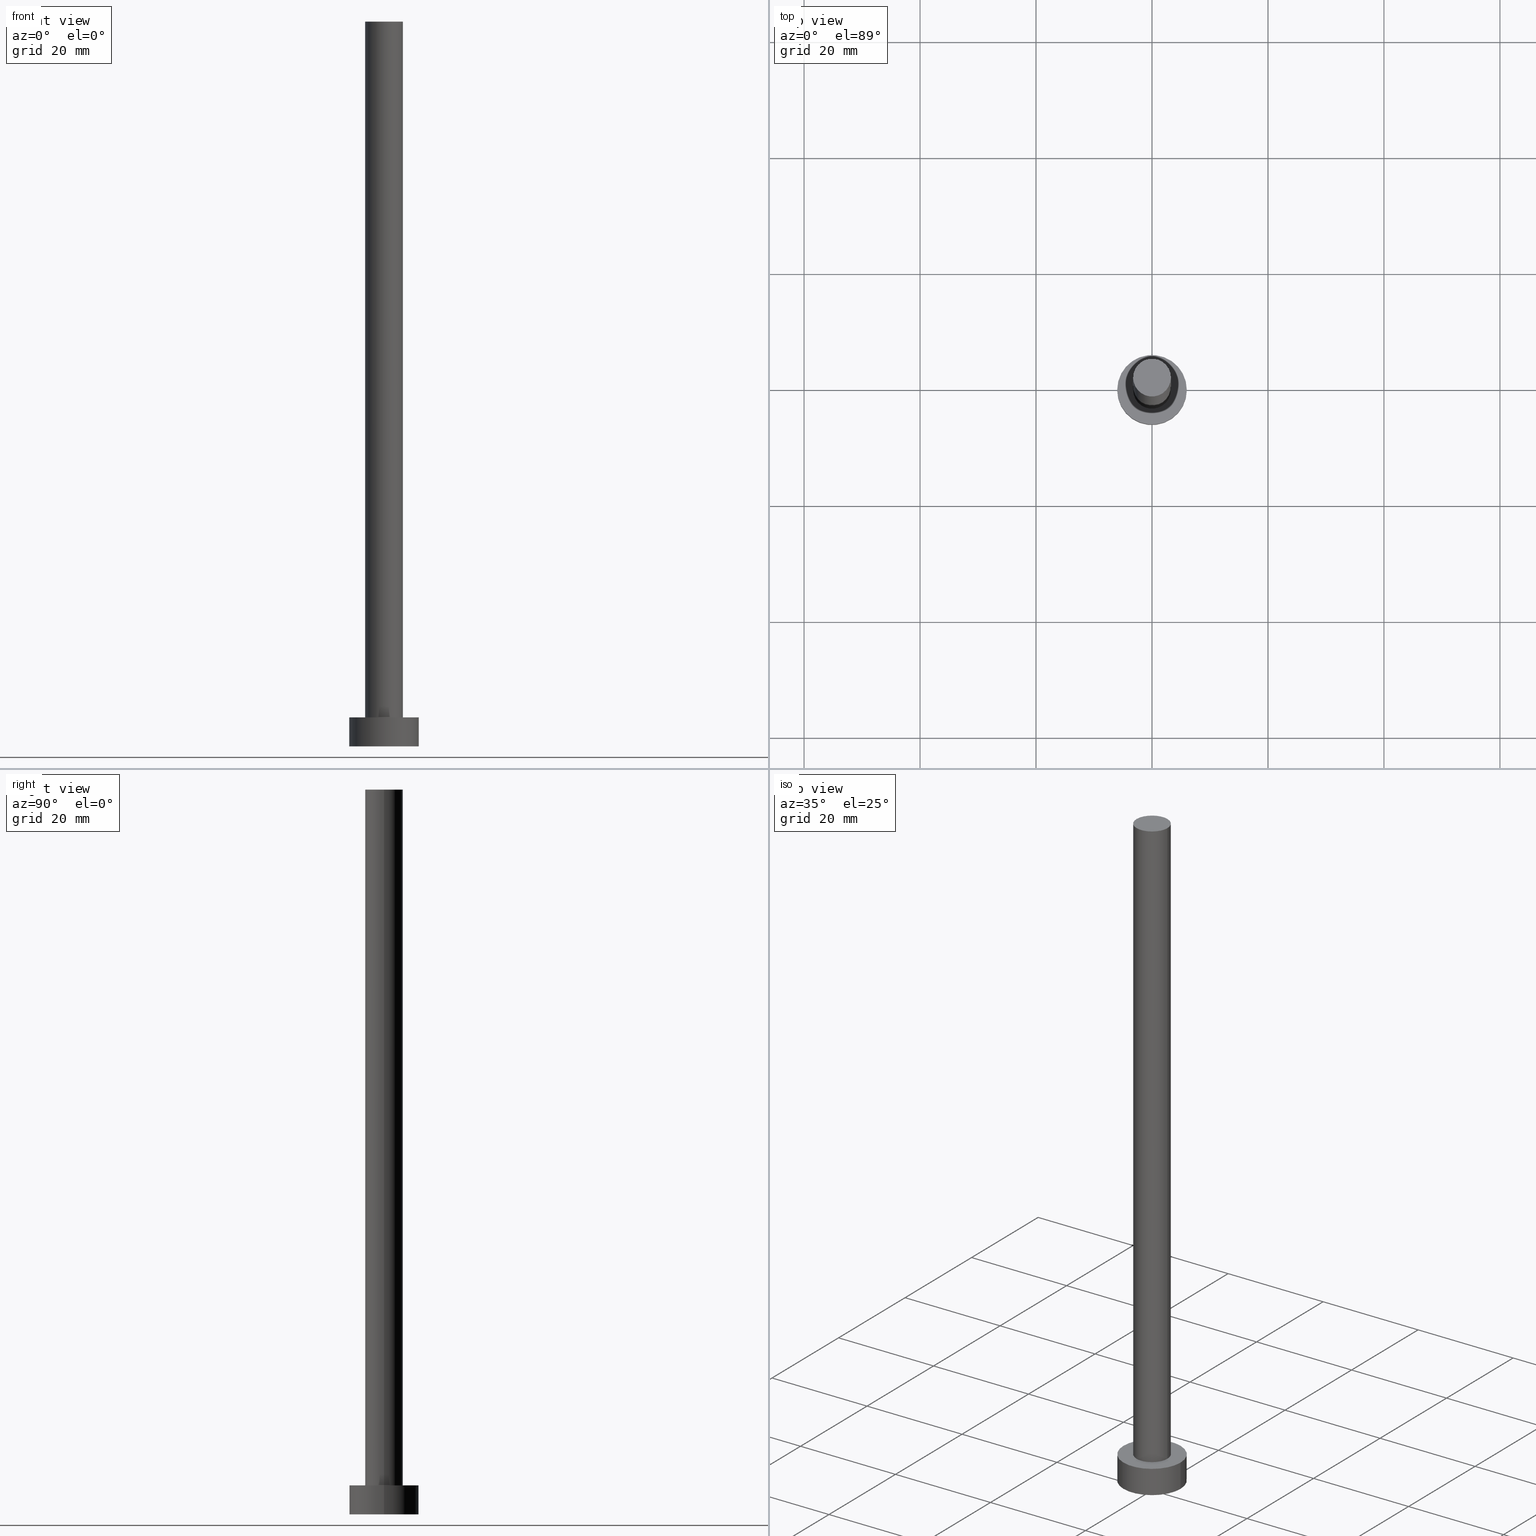
[diagram: canonical four-view strip — front | top / right | iso, engineering-drawing reading convention]
A machine part, canonical four-view strip (front | top / right | iso — engineering-drawing reading convention). The complete STEP part file that produces these views, byte-faithful:
ISO-10303-21;
HEADER;
FILE_DESCRIPTION (( 'STEP AP203' ),
    '1' );
FILE_NAME ('1fb7.STEP',
    '2023-02-13T11:49:00',
    ( '' ),
    ( '' ),
    'SwSTEP 2.0',
    'SolidWorks 2019',
    '' );
FILE_SCHEMA (( 'CONFIG_CONTROL_DESIGN' ));
ENDSEC;

DATA;
#1 = EDGE_LOOP ( 'NONE', ( #6, #85, #63, #153 ) ) ;
#2 = FACE_OUTER_BOUND ( 'NONE', #142, .T. ) ;
#3 = FACE_OUTER_BOUND ( 'NONE', #1, .T. ) ;
#4 = LOCAL_TIME ( 12, 49, 0.000000000000000000, #250 ) ;
#5 = AXIS2_PLACEMENT_3D ( 'NONE', #32, #105, #134 ) ;
#6 = ORIENTED_EDGE ( 'NONE', *, *, #240, .F. ) ;
#7 = DIRECTION ( 'NONE',  ( 0.000000000000000000, 0.000000000000000000, 1.000000000000000000 ) ) ;
#8 = ADVANCED_BREP_SHAPE_REPRESENTATION ( '1fb7', ( #81, #20 ), #158 ) ;
#9 = CYLINDRICAL_SURFACE ( 'NONE', #200, 6.000000000000000888 ) ;
#10 = AXIS2_PLACEMENT_3D ( 'NONE', #198, #138, #13 ) ;
#11 = DIRECTION ( 'NONE',  ( 1.000000000000000000, 0.000000000000000000, 0.000000000000000000 ) ) ;
#12 = CC_DESIGN_PERSON_AND_ORGANIZATION_ASSIGNMENT ( #121, #144, ( #170 ) ) ;
#13 = DIRECTION ( 'NONE',  ( 1.000000000000000000, 0.000000000000000000, 0.000000000000000000 ) ) ;
#14 = APPROVAL_PERSON_ORGANIZATION ( #116, #146, #165 ) ;
#15 = CIRCLE ( 'NONE', #237, 6.000000000000000888 ) ;
#16 = APPROVAL_STATUS ( 'not_yet_approved' ) ;
#17 = DATE_TIME_ROLE ( 'classification_date' ) ;
#18 = CC_DESIGN_DATE_AND_TIME_ASSIGNMENT ( #161, #17, ( #215 ) ) ;
#19 = SHAPE_DEFINITION_REPRESENTATION ( #52, #8 ) ;
#20 = AXIS2_PLACEMENT_3D ( 'NONE', #230, #34, #137 ) ;
#21 = CALENDAR_DATE ( 2023, 13, 2 ) ;
#22 = ORIENTED_EDGE ( 'NONE', *, *, #234, .T. ) ;
#23 = ORIENTED_EDGE ( 'NONE', *, *, #193, .F. ) ;
#24 = LOCAL_TIME ( 12, 49, 0.000000000000000000, #83 ) ;
#25 = ORIENTED_EDGE ( 'NONE', *, *, #59, .F. ) ;
#26 = EDGE_CURVE ( 'NONE', #120, #184, #118, .T. ) ;
#27 = ORIENTED_EDGE ( 'NONE', *, *, #41, .T. ) ;
#28 = CARTESIAN_POINT ( 'NONE',  ( 6.000000000000000888, 7.347880794884120722E-16, 5.000000000000000000 ) ) ;
#29 = CIRCLE ( 'NONE', #10, 3.250000000000000444 ) ;
#30 = ADVANCED_FACE ( 'NONE', ( #222 ), #224, .F. ) ;
#31 = LINE ( 'NONE', #225, #91 ) ;
#32 = CARTESIAN_POINT ( 'NONE',  ( 0.000000000000000000, 0.000000000000000000, 5.000000000000000000 ) ) ;
#33 = DIRECTION ( 'NONE',  ( 1.000000000000000000, 0.000000000000000000, 0.000000000000000000 ) ) ;
#34 = DIRECTION ( 'NONE',  ( 0.000000000000000000, 0.000000000000000000, 1.000000000000000000 ) ) ;
#35 = APPLICATION_CONTEXT ( 'configuration controlled 3d designs of mechanical parts and assemblies' ) ;
#36 = APPLICATION_PROTOCOL_DEFINITION ( 'international standard', 'config_control_design', 1994, #65 ) ;
#37 = ORIENTED_EDGE ( 'NONE', *, *, #130, .T. ) ;
#38 = DATE_TIME_ROLE ( 'creation_date' ) ;
#39 = ORIENTED_EDGE ( 'NONE', *, *, #168, .F. ) ;
#40 = PERSON_AND_ORGANIZATION ( #48, #100 ) ;
#41 = EDGE_CURVE ( 'NONE', #99, #120, #31, .T. ) ;
#42 = DIRECTION ( 'NONE',  ( 0.000000000000000000, 0.000000000000000000, 1.000000000000000000 ) ) ;
#43 = CC_DESIGN_APPROVAL ( #44, ( #170 ) ) ;
#44 = APPROVAL ( #145, 'NEUR�EN�' ) ;
#45 = CARTESIAN_POINT ( 'NONE',  ( 6.000000000000000888, 7.347880794884120722E-16, 5.000000000000000000 ) ) ;
#46 = ORIENTED_EDGE ( 'NONE', *, *, #54, .T. ) ;
#47 = ADVANCED_FACE ( 'NONE', ( #3 ), #171, .T. ) ;
#48 = PERSON ( 'NEUR�EN�', 'NEUR�EN�', 'NEUR�EN�', ('NEUR�EN�'), ('NEUR�EN�'), ('NEUR�EN�') ) ;
#49 = DIRECTION ( 'NONE',  ( -0.000000000000000000, -0.000000000000000000, -1.000000000000000000 ) ) ;
#50 = CARTESIAN_POINT ( 'NONE',  ( 0.000000000000000000, 0.000000000000000000, 125.0000000000000000 ) ) ;
#51 = DIRECTION ( 'NONE',  ( 0.000000000000000000, 0.000000000000000000, 1.000000000000000000 ) ) ;
#52 = PRODUCT_DEFINITION_SHAPE ( 'NONE', 'NONE',  #114 ) ;
#53 = DIRECTION ( 'NONE',  ( 0.000000000000000000, 0.000000000000000000, 1.000000000000000000 ) ) ;
#54 = EDGE_CURVE ( 'NONE', #117, #129, #71, .T. ) ;
#55 = AXIS2_PLACEMENT_3D ( 'NONE', #127, #86, #70 ) ;
#56 = PERSON_AND_ORGANIZATION_ROLE ( 'creator' ) ;
#57 = DATE_AND_TIME ( #163, #243 ) ;
#58 = ORIENTED_EDGE ( 'NONE', *, *, #26, .T. ) ;
#59 = EDGE_CURVE ( 'NONE', #102, #199, #241, .T. ) ;
#60 = ORIENTED_EDGE ( 'NONE', *, *, #193, .T. ) ;
#61 = PERSON_AND_ORGANIZATION ( #48, #100 ) ;
#62 = CC_DESIGN_APPROVAL ( #146, ( #215 ) ) ;
#63 = ORIENTED_EDGE ( 'NONE', *, *, #92, .T. ) ;
#64 = DIRECTION ( 'NONE',  ( 1.000000000000000000, 0.000000000000000000, 0.000000000000000000 ) ) ;
#65 = APPLICATION_CONTEXT ( 'configuration controlled 3d designs of mechanical parts and assemblies' ) ;
#66 = CC_DESIGN_DATE_AND_TIME_ASSIGNMENT ( #57, #38, ( #114 ) ) ;
#67 = ORIENTED_EDGE ( 'NONE', *, *, #168, .T. ) ;
#68 = AXIS2_PLACEMENT_3D ( 'NONE', #50, #49, #131 ) ;
#69 = CC_DESIGN_APPROVAL ( #219, ( #114 ) ) ;
#70 = DIRECTION ( 'NONE',  ( 1.000000000000000000, 0.000000000000000000, -0.000000000000000000 ) ) ;
#71 = LINE ( 'NONE', #107, #182 ) ;
#72 = EDGE_CURVE ( 'NONE', #242, #99, #97, .T. ) ;
#73 = FACE_OUTER_BOUND ( 'NONE', #216, .T. ) ;
#74 = APPROVAL_PERSON_ORGANIZATION ( #80, #44, #103 ) ;
#75 = CARTESIAN_POINT ( 'NONE',  ( 0.000000000000000000, 0.000000000000000000, 5.000000000000000000 ) ) ;
#76 = CARTESIAN_POINT ( 'NONE',  ( -3.250000000000000444, 0.000000000000000000, 125.0000000000000000 ) ) ;
#77 = CARTESIAN_POINT ( 'NONE',  ( -3.250000000000000444, 0.000000000000000000, 5.000000000000000000 ) ) ;
#78 = PERSON_AND_ORGANIZATION ( #48, #100 ) ;
#79 = CALENDAR_DATE ( 2023, 13, 2 ) ;
#80 = PERSON_AND_ORGANIZATION ( #48, #100 ) ;
#81 = MANIFOLD_SOLID_BREP ( 'P�idat vysunut�m3', #254 ) ;
#82 = CALENDAR_DATE ( 2023, 13, 2 ) ;
#83 = COORDINATED_UNIVERSAL_TIME_OFFSET ( 1, 0, .AHEAD. ) ;
#84 = ORIENTED_EDGE ( 'NONE', *, *, #72, .F. ) ;
#85 = ORIENTED_EDGE ( 'NONE', *, *, #59, .T. ) ;
#86 = DIRECTION ( 'NONE',  ( 0.000000000000000000, 0.000000000000000000, 1.000000000000000000 ) ) ;
#87 = CARTESIAN_POINT ( 'NONE',  ( 3.250000000000000444, 3.980102097228898231E-16, 125.0000000000000000 ) ) ;
#88 = DIRECTION ( 'NONE',  ( 1.000000000000000000, 0.000000000000000000, -0.000000000000000000 ) ) ;
#89 = CARTESIAN_POINT ( 'NONE',  ( 3.250000000000000444, 3.980102097228898231E-16, 5.000000000000000000 ) ) ;
#90 = MECHANICAL_CONTEXT ( 'NONE', #35, 'mechanical' ) ;
#91 = VECTOR ( 'NONE', #167, 1000.000000000000000 ) ;
#92 = EDGE_CURVE ( 'NONE', #199, #129, #15, .T. ) ;
#93 = AXIS2_PLACEMENT_3D ( 'NONE', #94, #159, #195 ) ;
#94 = CARTESIAN_POINT ( 'NONE',  ( 0.000000000000000000, 0.000000000000000000, 5.000000000000000000 ) ) ;
#95 = ADVANCED_FACE ( 'NONE', ( #152 ), #109, .T. ) ;
#96 = DIRECTION ( 'NONE',  ( -0.000000000000000000, -0.000000000000000000, -1.000000000000000000 ) ) ;
#97 = CIRCLE ( 'NONE', #111, 3.250000000000000444 ) ;
#98 = DIRECTION ( 'NONE',  ( 1.000000000000000000, 0.000000000000000000, -0.000000000000000000 ) ) ;
#99 = VERTEX_POINT ( 'NONE', #87 ) ;
#100 = ORGANIZATION ( 'NEUR�EN�', 'NEUR�EN�', '' ) ;
#101 = APPROVAL_DATE_TIME ( #124, #146 ) ;
#102 = VERTEX_POINT ( 'NONE', #28 ) ;
#103 = APPROVAL_ROLE ( '' ) ;
#104 = ORIENTED_EDGE ( 'NONE', *, *, #240, .T. ) ;
#105 = DIRECTION ( 'NONE',  ( 0.000000000000000000, 0.000000000000000000, 1.000000000000000000 ) ) ;
#106 = FACE_BOUND ( 'NONE', #186, .T. ) ;
#107 = CARTESIAN_POINT ( 'NONE',  ( -6.000000000000000888, 0.000000000000000000, 5.000000000000000000 ) ) ;
#108 = CARTESIAN_POINT ( 'NONE',  ( 0.000000000000000000, 0.000000000000000000, 125.0000000000000000 ) ) ;
#109 = CYLINDRICAL_SURFACE ( 'NONE', #197, 3.250000000000000444 ) ;
#110 = DIRECTION ( 'NONE',  ( -1.000000000000000000, 0.000000000000000000, 0.000000000000000000 ) ) ;
#111 = AXIS2_PLACEMENT_3D ( 'NONE', #108, #7, #64 ) ;
#112 =( NAMED_UNIT ( * ) PLANE_ANGLE_UNIT ( ) SI_UNIT ( $, .RADIAN. ) );
#113 = ADVANCED_FACE ( 'NONE', ( #106, #2 ), #244, .T. ) ;
#114 = PRODUCT_DEFINITION ( 'NEZN�M�', '', #170, #135 ) ;
#115 = DIRECTION ( 'NONE',  ( -0.000000000000000000, -0.000000000000000000, -1.000000000000000000 ) ) ;
#116 = PERSON_AND_ORGANIZATION ( #48, #100 ) ;
#117 = VERTEX_POINT ( 'NONE', #151 ) ;
#118 = CIRCLE ( 'NONE', #5, 3.250000000000000444 ) ;
#119 = DATE_AND_TIME ( #21, #24 ) ;
#120 = VERTEX_POINT ( 'NONE', #89 ) ;
#121 = PERSON_AND_ORGANIZATION ( #48, #100 ) ;
#122 = EDGE_LOOP ( 'NONE', ( #208, #22 ) ) ;
#123 = ADVANCED_FACE ( 'NONE', ( #223 ), #245, .T. ) ;
#124 = DATE_AND_TIME ( #232, #220 ) ;
#125 = AXIS2_PLACEMENT_3D ( 'NONE', #213, #53, #98 ) ;
#126 = ORIENTED_EDGE ( 'NONE', *, *, #41, .F. ) ;
#127 = CARTESIAN_POINT ( 'NONE',  ( 0.000000000000000000, 0.000000000000000000, 5.000000000000000000 ) ) ;
#128 = ADVANCED_FACE ( 'NONE', ( #73 ), #9, .T. ) ;
#129 = VERTEX_POINT ( 'NONE', #191 ) ;
#130 = EDGE_CURVE ( 'NONE', #184, #120, #229, .T. ) ;
#131 = DIRECTION ( 'NONE',  ( -1.000000000000000000, 0.000000000000000000, 0.000000000000000000 ) ) ;
#132 = APPROVAL_PERSON_ORGANIZATION ( #247, #219, #210 ) ;
#133 = EDGE_CURVE ( 'NONE', #117, #102, #187, .T. ) ;
#134 = DIRECTION ( 'NONE',  ( 1.000000000000000000, 0.000000000000000000, 0.000000000000000000 ) ) ;
#135 = DESIGN_CONTEXT ( 'detailed design', #65, 'design' ) ;
#136 = CARTESIAN_POINT ( 'NONE',  ( -3.250000000000000444, 0.000000000000000000, 125.0000000000000000 ) ) ;
#137 = DIRECTION ( 'NONE',  ( 1.000000000000000000, 0.000000000000000000, 0.000000000000000000 ) ) ;
#138 = DIRECTION ( 'NONE',  ( 0.000000000000000000, 0.000000000000000000, 1.000000000000000000 ) ) ;
#139 = APPLICATION_PROTOCOL_DEFINITION ( 'international standard', 'config_control_design', 1994, #35 ) ;
#140 = AXIS2_PLACEMENT_3D ( 'NONE', #194, #156, #11 ) ;
#141 = PERSON_AND_ORGANIZATION_ROLE ( 'creator' ) ;
#142 = EDGE_LOOP ( 'NONE', ( #255, #104 ) ) ;
#143 = CC_DESIGN_PERSON_AND_ORGANIZATION_ASSIGNMENT ( #78, #196, ( #205 ) ) ;
#144 = PERSON_AND_ORGANIZATION_ROLE ( 'design_supplier' ) ;
#145 = APPROVAL_STATUS ( 'not_yet_approved' ) ;
#146 = APPROVAL ( #218, 'NEUR�EN�' ) ;
#147 = ORIENTED_EDGE ( 'NONE', *, *, #26, .F. ) ;
#148 = EDGE_LOOP ( 'NONE', ( #39, #188 ) ) ;
#149 = CC_DESIGN_SECURITY_CLASSIFICATION ( #215, ( #170 ) ) ;
#150 = ORIENTED_EDGE ( 'NONE', *, *, #130, .F. ) ;
#151 = CARTESIAN_POINT ( 'NONE',  ( -6.000000000000000888, 0.000000000000000000, 5.000000000000000000 ) ) ;
#152 = FACE_OUTER_BOUND ( 'NONE', #202, .T. ) ;
#153 = ORIENTED_EDGE ( 'NONE', *, *, #54, .F. ) ;
#154 = AXIS2_PLACEMENT_3D ( 'NONE', #176, #248, #33 ) ;
#155 = CARTESIAN_POINT ( 'NONE',  ( 0.000000000000000000, 0.000000000000000000, 5.000000000000000000 ) ) ;
#156 = DIRECTION ( 'NONE',  ( 0.000000000000000000, 0.000000000000000000, 1.000000000000000000 ) ) ;
#157 = VECTOR ( 'NONE', #96, 1000.000000000000000 ) ;
#158 =( GEOMETRIC_REPRESENTATION_CONTEXT ( 3 ) GLOBAL_UNCERTAINTY_ASSIGNED_CONTEXT ( ( #251 ) ) GLOBAL_UNIT_ASSIGNED_CONTEXT ( ( #180, #112, #178 ) ) REPRESENTATION_CONTEXT ( 'NONE', 'WORKASPACE' ) );
#159 = DIRECTION ( 'NONE',  ( 0.000000000000000000, 0.000000000000000000, 1.000000000000000000 ) ) ;
#160 = DATE_AND_TIME ( #79, #4 ) ;
#161 = DATE_AND_TIME ( #82, #179 ) ;
#162 = AXIS2_PLACEMENT_3D ( 'NONE', #246, #206, #88 ) ;
#163 = CALENDAR_DATE ( 2023, 13, 2 ) ;
#164 = VECTOR ( 'NONE', #185, 1000.000000000000000 ) ;
#165 = APPROVAL_ROLE ( '' ) ;
#166 = ORIENTED_EDGE ( 'NONE', *, *, #234, .F. ) ;
#167 = DIRECTION ( 'NONE',  ( -0.000000000000000000, -0.000000000000000000, -1.000000000000000000 ) ) ;
#168 = EDGE_CURVE ( 'NONE', #129, #199, #236, .T. ) ;
#169 = DIRECTION ( 'NONE',  ( 1.000000000000000000, 0.000000000000000000, 0.000000000000000000 ) ) ;
#170 = PRODUCT_DEFINITION_FORMATION_WITH_SPECIFIED_SOURCE ( 'LIBOVOLN�', '', #205, .NOT_KNOWN. ) ;
#171 = CYLINDRICAL_SURFACE ( 'NONE', #174, 6.000000000000000888 ) ;
#172 = CARTESIAN_POINT ( 'NONE',  ( 0.000000000000000000, 0.000000000000000000, 125.0000000000000000 ) ) ;
#173 = CARTESIAN_POINT ( 'NONE',  ( 0.000000000000000000, 0.000000000000000000, 0.000000000000000000 ) ) ;
#174 = AXIS2_PLACEMENT_3D ( 'NONE', #189, #221, #209 ) ;
#175 = DIRECTION ( 'NONE',  ( 1.000000000000000000, 0.000000000000000000, 0.000000000000000000 ) ) ;
#176 = CARTESIAN_POINT ( 'NONE',  ( 0.000000000000000000, 0.000000000000000000, 0.000000000000000000 ) ) ;
#177 = CC_DESIGN_PERSON_AND_ORGANIZATION_ASSIGNMENT ( #235, #56, ( #170 ) ) ;
#178 =( NAMED_UNIT ( * ) SI_UNIT ( $, .STERADIAN. ) SOLID_ANGLE_UNIT ( ) );
#179 = LOCAL_TIME ( 12, 49, 0.000000000000000000, #252 ) ;
#180 =( LENGTH_UNIT ( ) NAMED_UNIT ( * ) SI_UNIT ( .MILLI., .METRE. ) );
#181 = CC_DESIGN_PERSON_AND_ORGANIZATION_ASSIGNMENT ( #40, #253, ( #215 ) ) ;
#182 = VECTOR ( 'NONE', #204, 1000.000000000000000 ) ;
#183 = APPROVAL_DATE_TIME ( #119, #44 ) ;
#184 = VERTEX_POINT ( 'NONE', #77 ) ;
#185 = DIRECTION ( 'NONE',  ( -0.000000000000000000, -0.000000000000000000, -1.000000000000000000 ) ) ;
#186 = EDGE_LOOP ( 'NONE', ( #150, #147 ) ) ;
#187 = CIRCLE ( 'NONE', #93, 6.000000000000000888 ) ;
#188 = ORIENTED_EDGE ( 'NONE', *, *, #92, .F. ) ;
#189 = CARTESIAN_POINT ( 'NONE',  ( 0.000000000000000000, 0.000000000000000000, 5.000000000000000000 ) ) ;
#190 = DIRECTION ( 'NONE',  ( -0.000000000000000000, -0.000000000000000000, -1.000000000000000000 ) ) ;
#191 = CARTESIAN_POINT ( 'NONE',  ( -6.000000000000000888, 0.000000000000000000, 0.000000000000000000 ) ) ;
#192 = CIRCLE ( 'NONE', #233, 6.000000000000000888 ) ;
#193 = EDGE_CURVE ( 'NONE', #242, #184, #214, .T. ) ;
#194 = CARTESIAN_POINT ( 'NONE',  ( 0.000000000000000000, 0.000000000000000000, 5.000000000000000000 ) ) ;
#195 = DIRECTION ( 'NONE',  ( 1.000000000000000000, 0.000000000000000000, 0.000000000000000000 ) ) ;
#196 = PERSON_AND_ORGANIZATION_ROLE ( 'design_owner' ) ;
#197 = AXIS2_PLACEMENT_3D ( 'NONE', #172, #190, #207 ) ;
#198 = CARTESIAN_POINT ( 'NONE',  ( 0.000000000000000000, 0.000000000000000000, 125.0000000000000000 ) ) ;
#199 = VERTEX_POINT ( 'NONE', #228 ) ;
#200 = AXIS2_PLACEMENT_3D ( 'NONE', #75, #115, #110 ) ;
#201 = SECURITY_CLASSIFICATION_LEVEL ( 'unclassified' ) ;
#202 = EDGE_LOOP ( 'NONE', ( #166, #27, #58, #23 ) ) ;
#203 = EDGE_LOOP ( 'NONE', ( #126, #84, #60, #37 ) ) ;
#204 = DIRECTION ( 'NONE',  ( -0.000000000000000000, -0.000000000000000000, -1.000000000000000000 ) ) ;
#205 = PRODUCT ( '1fb7', '1fb7', '', ( #90 ) ) ;
#206 = DIRECTION ( 'NONE',  ( 0.000000000000000000, 0.000000000000000000, 1.000000000000000000 ) ) ;
#207 = DIRECTION ( 'NONE',  ( -1.000000000000000000, 0.000000000000000000, 0.000000000000000000 ) ) ;
#208 = ORIENTED_EDGE ( 'NONE', *, *, #72, .T. ) ;
#209 = DIRECTION ( 'NONE',  ( -1.000000000000000000, 0.000000000000000000, 0.000000000000000000 ) ) ;
#210 = APPROVAL_ROLE ( '' ) ;
#211 = FACE_OUTER_BOUND ( 'NONE', #122, .T. ) ;
#212 = PRODUCT_RELATED_PRODUCT_CATEGORY ( 'detail', '', ( #205 ) ) ;
#213 = CARTESIAN_POINT ( 'NONE',  ( 0.000000000000000000, 0.000000000000000000, 125.0000000000000000 ) ) ;
#214 = LINE ( 'NONE', #76, #157 ) ;
#215 = SECURITY_CLASSIFICATION ( '', '', #201 ) ;
#216 = EDGE_LOOP ( 'NONE', ( #25, #239, #46, #67 ) ) ;
#217 = COORDINATED_UNIVERSAL_TIME_OFFSET ( 1, 0, .AHEAD. ) ;
#218 = APPROVAL_STATUS ( 'not_yet_approved' ) ;
#219 = APPROVAL ( #16, 'NEUR�EN�' ) ;
#220 = LOCAL_TIME ( 12, 49, 0.000000000000000000, #238 ) ;
#221 = DIRECTION ( 'NONE',  ( -0.000000000000000000, -0.000000000000000000, -1.000000000000000000 ) ) ;
#222 = FACE_OUTER_BOUND ( 'NONE', #148, .T. ) ;
#223 = FACE_OUTER_BOUND ( 'NONE', #203, .T. ) ;
#224 = PLANE ( 'NONE',  #162 ) ;
#225 = CARTESIAN_POINT ( 'NONE',  ( 3.250000000000000444, 3.980102097228898231E-16, 125.0000000000000000 ) ) ;
#226 = PLANE ( 'NONE',  #125 ) ;
#227 = CC_DESIGN_PERSON_AND_ORGANIZATION_ASSIGNMENT ( #61, #141, ( #114 ) ) ;
#228 = CARTESIAN_POINT ( 'NONE',  ( 6.000000000000000888, 7.347880794884120722E-16, 0.000000000000000000 ) ) ;
#229 = CIRCLE ( 'NONE', #140, 3.250000000000000444 ) ;
#230 = CARTESIAN_POINT ( 'NONE',  ( 0.000000000000000000, 0.000000000000000000, 0.000000000000000000 ) ) ;
#231 = APPROVAL_DATE_TIME ( #160, #219 ) ;
#232 = CALENDAR_DATE ( 2023, 13, 2 ) ;
#233 = AXIS2_PLACEMENT_3D ( 'NONE', #155, #51, #175 ) ;
#234 = EDGE_CURVE ( 'NONE', #99, #242, #29, .T. ) ;
#235 = PERSON_AND_ORGANIZATION ( #48, #100 ) ;
#236 = CIRCLE ( 'NONE', #154, 6.000000000000000888 ) ;
#237 = AXIS2_PLACEMENT_3D ( 'NONE', #173, #42, #169 ) ;
#238 = COORDINATED_UNIVERSAL_TIME_OFFSET ( 1, 0, .AHEAD. ) ;
#239 = ORIENTED_EDGE ( 'NONE', *, *, #133, .F. ) ;
#240 = EDGE_CURVE ( 'NONE', #102, #117, #192, .T. ) ;
#241 = LINE ( 'NONE', #45, #164 ) ;
#242 = VERTEX_POINT ( 'NONE', #136 ) ;
#243 = LOCAL_TIME ( 12, 49, 0.000000000000000000, #217 ) ;
#244 = PLANE ( 'NONE',  #55 ) ;
#245 = CYLINDRICAL_SURFACE ( 'NONE', #68, 3.250000000000000444 ) ;
#246 = CARTESIAN_POINT ( 'NONE',  ( 0.000000000000000000, 0.000000000000000000, 0.000000000000000000 ) ) ;
#247 = PERSON_AND_ORGANIZATION ( #48, #100 ) ;
#248 = DIRECTION ( 'NONE',  ( 0.000000000000000000, 0.000000000000000000, 1.000000000000000000 ) ) ;
#249 = ADVANCED_FACE ( 'NONE', ( #211 ), #226, .T. ) ;
#250 = COORDINATED_UNIVERSAL_TIME_OFFSET ( 1, 0, .AHEAD. ) ;
#251 = UNCERTAINTY_MEASURE_WITH_UNIT (LENGTH_MEASURE( 1.000000000000000082E-05 ), #180, 'distance_accuracy_value', 'NONE');
#252 = COORDINATED_UNIVERSAL_TIME_OFFSET ( 1, 0, .AHEAD. ) ;
#253 = PERSON_AND_ORGANIZATION_ROLE ( 'classification_officer' ) ;
#254 = CLOSED_SHELL ( 'NONE', ( #95, #47, #128, #113, #30, #123, #249 ) ) ;
#255 = ORIENTED_EDGE ( 'NONE', *, *, #133, .T. ) ;
ENDSEC;
END-ISO-10303-21;
